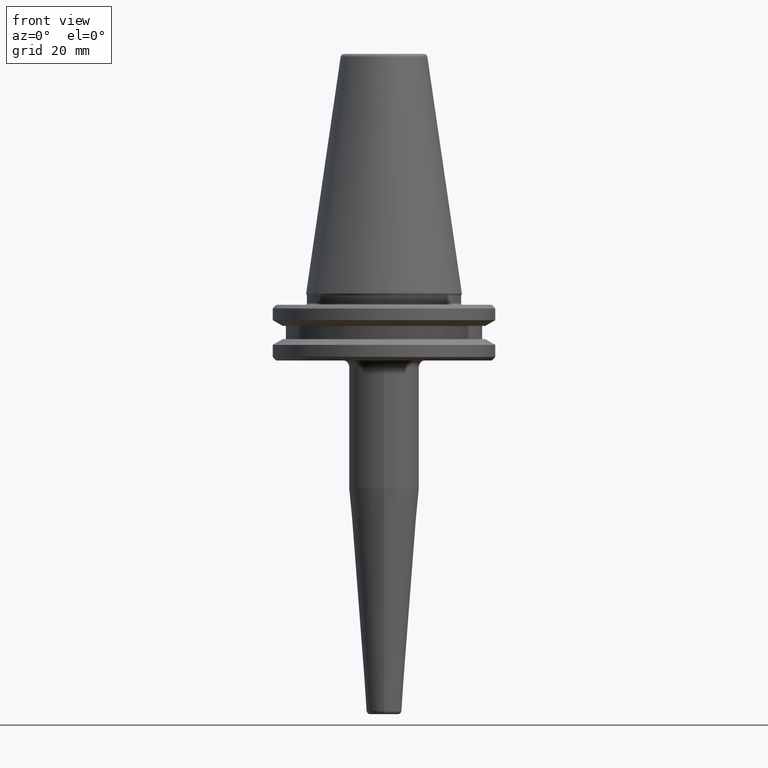
[diagram: clean part render]
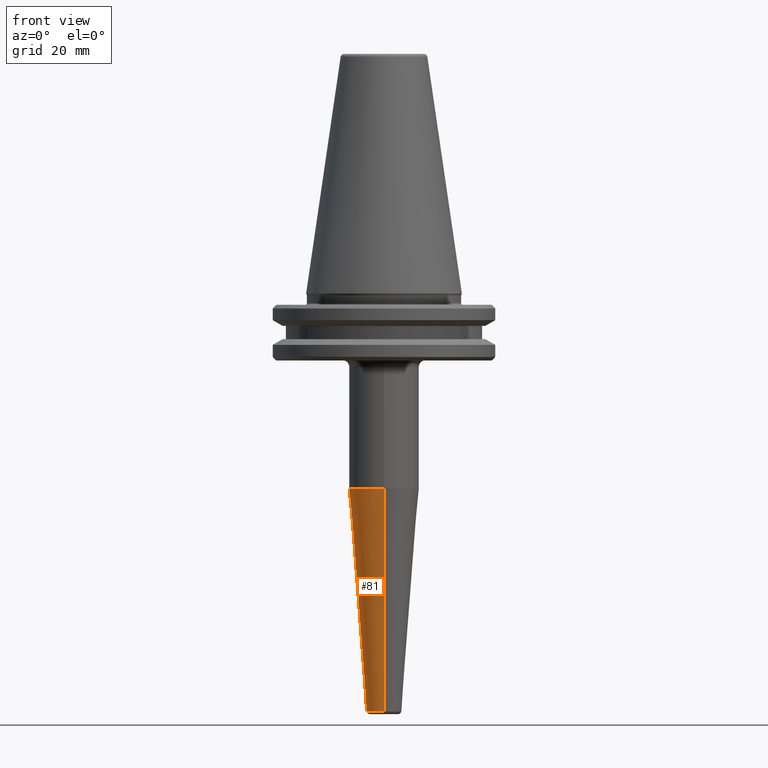
[diagram: same view with one face highlighted and labeled with its STEP entity id]
A machine part, front view. The second image highlights one B-rep face of the part: STEP entity #81.
In plain terms, the highlighted conical surface has half-angle 4.5 deg.
Its self-contained STEP definition (entity closure, byte-faithful):
#7 = DIRECTION ( 'NONE',  ( 0.0000000000000000000, 1.000000000000000000, 0.0000000000000000000 ) ) ;
#29 = CARTESIAN_POINT ( 'NONE',  ( 0.0000000000000000000, 2.216569900254645900E-015, -119.0784590957278200 ) ) ;
#57 = EDGE_CURVE ( 'NONE', #398, #263, #583, .T. ) ;
#81 = ADVANCED_FACE ( 'NONE', ( #1061 ), #1257, .T. ) ;
#129 = CARTESIAN_POINT ( 'NONE',  ( 1.224646799147354600E-015, 10.00000000000000200, -55.54743541484744200 ) ) ;
#155 = VERTEX_POINT ( 'NONE', #908 ) ;
#227 = CARTESIAN_POINT ( 'NONE',  ( 0.0000000000000000000, -4.999999999999994700, -119.0784590957278200 ) ) ;
#263 = VERTEX_POINT ( 'NONE', #598 ) ;
#285 = EDGE_LOOP ( 'NONE', ( #359, #850, #541, #871 ) ) ;
#342 = AXIS2_PLACEMENT_3D ( 'NONE', #1070, #684, #7 ) ;
#359 = ORIENTED_EDGE ( 'NONE', *, *, #535, .F. ) ;
#369 = DIRECTION ( 'NONE',  ( 0.0000000000000000000, 1.000000000000000000, 0.0000000000000000000 ) ) ;
#398 = VERTEX_POINT ( 'NONE', #712 ) ;
#431 = CARTESIAN_POINT ( 'NONE',  ( 0.0000000000000000000, -1.015138088673305800E-014, -55.54743541484744200 ) ) ;
#433 = DIRECTION ( 'NONE',  ( 0.0000000000000000000, -1.000000000000000000, 0.0000000000000000000 ) ) ;
#436 = VECTOR ( 'NONE', #550, 1000.000000000000000 ) ;
#468 = EDGE_CURVE ( 'NONE', #398, #155, #688, .T. ) ;
#488 = EDGE_CURVE ( 'NONE', #263, #1207, #1176, .T. ) ;
#535 = EDGE_CURVE ( 'NONE', #155, #1207, #671, .T. ) ;
#541 = ORIENTED_EDGE ( 'NONE', *, *, #57, .T. ) ;
#550 = DIRECTION ( 'NONE',  ( 9.608468044709102800E-018, 0.07845909572783652000, 0.9969173337331286300 ) ) ;
#556 = VECTOR ( 'NONE', #800, 1000.000000000000000 ) ;
#583 = LINE ( 'NONE', #227, #556 ) ;
#598 = CARTESIAN_POINT ( 'NONE',  ( 0.0000000000000000000, -10.00000000000002100, -55.54743541484744200 ) ) ;
#620 = DIRECTION ( 'NONE',  ( -0.0000000000000000000, 1.946757673717420000E-016, -1.000000000000000000 ) ) ;
#671 = LINE ( 'NONE', #733, #436 ) ;
#684 = DIRECTION ( 'NONE',  ( -0.0000000000000000000, 1.946757673717420000E-016, -1.000000000000000000 ) ) ;
#688 = CIRCLE ( 'NONE', #342, 4.999999999999997300 ) ;
#707 = DIRECTION ( 'NONE',  ( 0.0000000000000000000, -1.946757673717420000E-016, 1.000000000000000000 ) ) ;
#712 = CARTESIAN_POINT ( 'NONE',  ( 6.123233995736763300E-016, -4.999999999999995600, -119.0784590957278200 ) ) ;
#733 = CARTESIAN_POINT ( 'NONE',  ( 6.123233995736763300E-016, 5.000000000000000000, -119.0784590957278200 ) ) ;
#800 = DIRECTION ( 'NONE',  ( 0.0000000000000000000, -0.07845909572783692200, 0.9969173337331286300 ) ) ;
#850 = ORIENTED_EDGE ( 'NONE', *, *, #468, .F. ) ;
#871 = ORIENTED_EDGE ( 'NONE', *, *, #488, .T. ) ;
#908 = CARTESIAN_POINT ( 'NONE',  ( 0.0000000000000000000, 5.000000000000000900, -119.0784590957278200 ) ) ;
#1061 = FACE_OUTER_BOUND ( 'NONE', #285, .T. ) ;
#1070 = CARTESIAN_POINT ( 'NONE',  ( 0.0000000000000000000, 2.216569900254645900E-015, -119.0784590957278200 ) ) ;
#1099 = AXIS2_PLACEMENT_3D ( 'NONE', #29, #707, #433 ) ;
#1176 = CIRCLE ( 'NONE', #1191, 10.00000000000001100 ) ;
#1191 = AXIS2_PLACEMENT_3D ( 'NONE', #431, #620, #369 ) ;
#1207 = VERTEX_POINT ( 'NONE', #129 ) ;
#1257 = CONICAL_SURFACE ( 'NONE', #1099, 4.999999999999997300, 0.07853981633973658400 ) ;